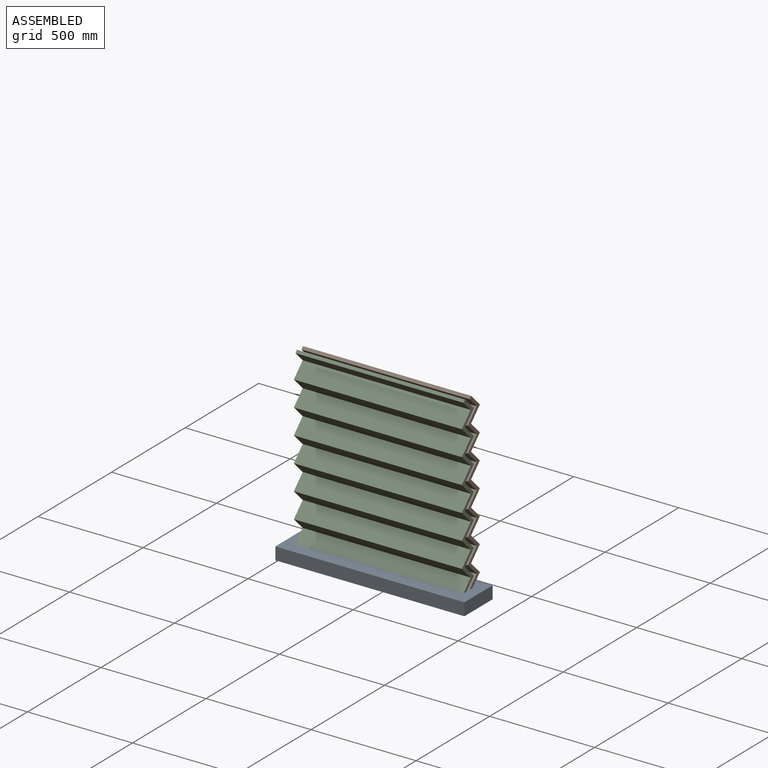
[diagram: assembled view]
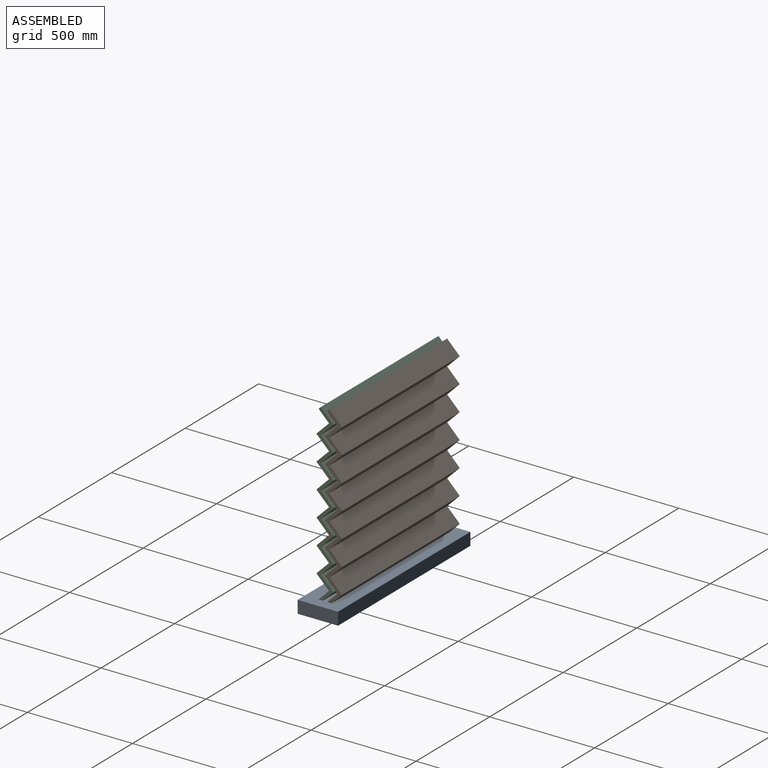
[diagram: assembled view, second angle]
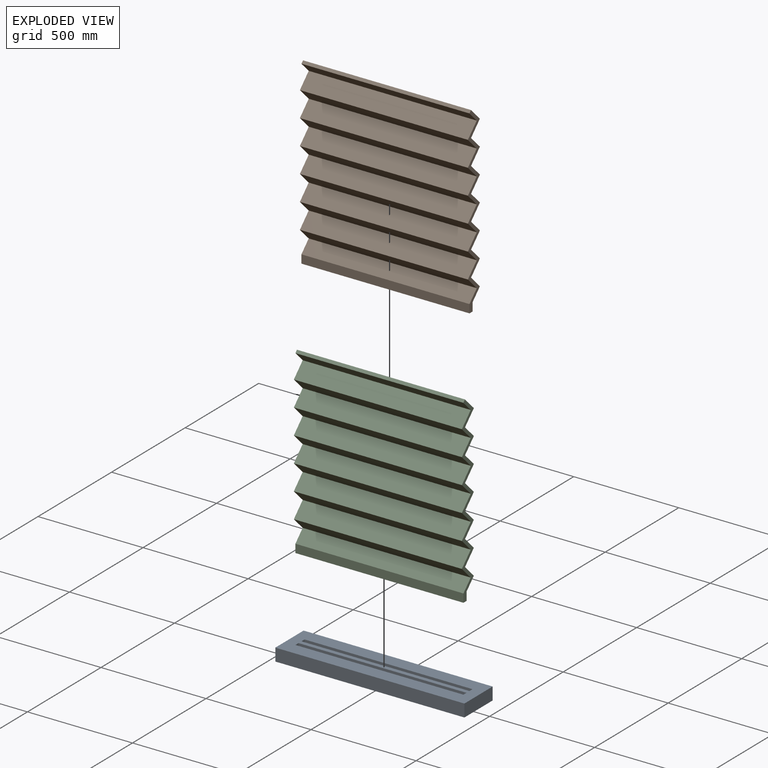
[diagram: exploded view]
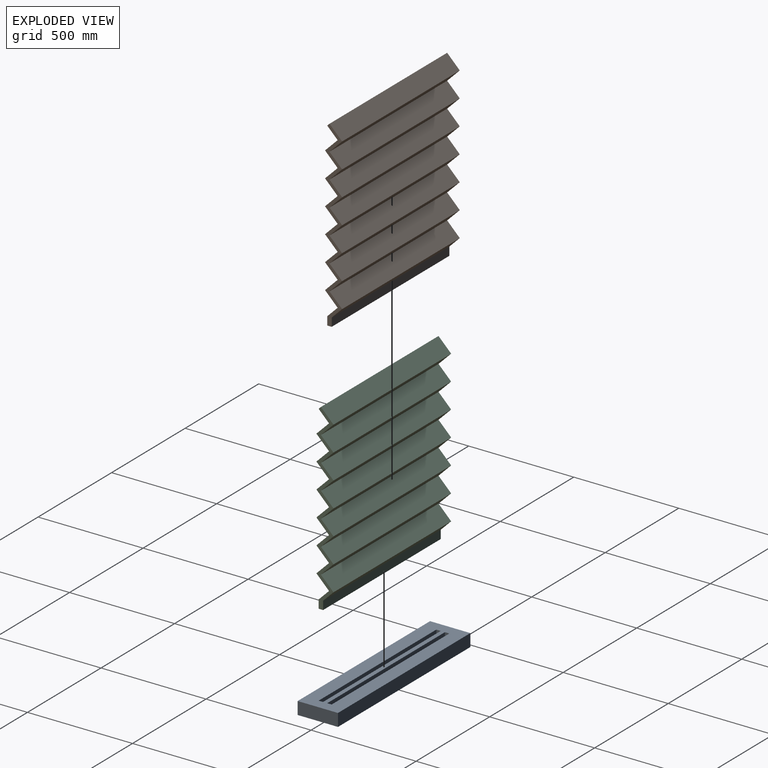
[diagram: exploded view, second angle]
ASSEMBLY  parts=3 mates=2
PART A: 16 faces, bbox 900x192x60 mm
  f0: plane 900x192mm, normal (0,0,1), area 139200mm2, adj f1,f2,f3,f4,f6,f7,f8,f9
  f1: plane 192x60mm, normal (1,0,0), area 11520mm2, adj f0,f2,f4,f5
  f2: plane 900x60mm, normal (0,1,0), area 54000mm2, adj f0,f1,f3,f5
  f3: plane 192x60mm, normal (-1,0,0), area 11520mm2, adj f0,f2,f4,f5
  f4: plane 900x60mm, normal (0,-1,0), area 54000mm2, adj f0,f1,f3,f5
  f5: plane 900x192mm, normal (0,0,-1), area 172800mm2, adj f1,f2,f3,f4
  f6: plane 800x40mm, normal (0,1,0), area 32000mm2, adj f0,f7,f9,f10
  f7: plane 40x21mm, normal (-1,0,0), area 840mm2, adj f0,f6,f8,f10
  f8: plane 800x40mm, normal (0,-1,0), area 32000mm2, adj f0,f7,f9,f10
  f9: plane 40x21mm, normal (1,0,0), area 840mm2, adj f0,f6,f8,f10
  f10: plane 800x21mm, normal (0,0,1), area 16800mm2, adj f6,f7,f8,f9
  f11: plane 40x21mm, normal (-1,0,0), area 840mm2, adj f0,f12,f14,f15
  f12: plane 800x40mm, normal (0,-1,0), area 32000mm2, adj f0,f11,f13,f15
  f13: plane 40x21mm, normal (1,0,0), area 840mm2, adj f0,f12,f14,f15
  f14: plane 800x40mm, normal (0,1,0), area 32000mm2, adj f0,f11,f13,f15
  f15: plane 800x21mm, normal (0,0,1), area 16800mm2, adj f11,f12,f13,f14
PART B: 34 faces, bbox 800x623.3x623.3 mm
  f0: plane 800x85mm, normal (0,0,-1), area 68000mm2, adj f1,f31,f32,f33
  f1: plane 800x70mm, normal (0,-1,0), area 56000mm2, adj f0,f2,f32,f33
  f2: plane 800x28.28mm, normal (0,-0.71,-0.71), area 32000mm2, adj f1,f3,f32,f33
  f3: plane 800x15mm, normal (0,0.71,-0.71), area 16970.6mm2, adj f2,f4,f32,f33
  f4: plane 800x28.28mm, normal (0,0.71,0.71), area 32000mm2, adj f3,f5,f32,f33
  f5: plane 800x70mm, normal (0,1,0), area 56000mm2, adj f4,f6,f32,f33
  f6: plane 800x85mm, normal (0,0,1), area 68000mm2, adj f5,f7,f32,f33
  f7: plane 800x85mm, normal (0,1,0), area 68000mm2, adj f6,f8,f32,f33
  f8: plane 800x85mm, normal (0,0,1), area 68000mm2, adj f7,f9,f32,f33
  f9: plane 800x85mm, normal (0,1,0), area 68000mm2, adj f8,f10,f32,f33
  f10: plane 800x85mm, normal (0,0,1), area 68000mm2, adj f9,f11,f32,f33
  f11: plane 800x85mm, normal (0,1,0), area 68000mm2, adj f10,f12,f32,f33
  f12: plane 800x85mm, normal (0,0,1), area 68000mm2, adj f11,f13,f32,f33
  f13: plane 800x85mm, normal (0,1,0), area 68000mm2, adj f12,f14,f32,f33
  f14: plane 800x85mm, normal (0,0,1), area 68000mm2, adj f13,f15,f32,f33
  f15: plane 800x85mm, normal (0,1,0), area 68000mm2, adj f14,f16,f32,f33
  f16: plane 800x85mm, normal (0,0,1), area 68000mm2, adj f15,f17,f32,f33
  f17: plane 800x85mm, normal (0,1,0), area 68000mm2, adj f16,f18,f32,f33
  f18: plane 800x85mm, normal (0,0,1), area 68000mm2, adj f17,f19,f32,f33
  f19: plane 800x15mm, normal (0,-1,0), area 12000mm2, adj f18,f20,f32,f33
  f20: plane 800x70mm, normal (0,0,-1), area 56000mm2, adj f19,f21,f32,f33
  f21: plane 800x85mm, normal (0,-1,0), area 68000mm2, adj f20,f22,f32,f33
  f22: plane 800x85mm, normal (0,0,-1), area 68000mm2, adj f21,f23,f32,f33
  f23: plane 800x85mm, normal (0,-1,0), area 68000mm2, adj f22,f24,f32,f33
  f24: plane 800x85mm, normal (0,0,-1), area 68000mm2, adj f23,f25,f32,f33
  f25: plane 800x85mm, normal (0,-1,0), area 68000mm2, adj f24,f26,f32,f33
  f26: plane 800x85mm, normal (0,0,-1), area 68000mm2, adj f25,f27,f32,f33
  f27: plane 800x85mm, normal (0,-1,0), area 68000mm2, adj f26,f28,f32,f33
  f28: plane 800x85mm, normal (0,0,-1), area 68000mm2, adj f27,f29,f32,f33
  f29: plane 800x85mm, normal (0,-1,0), area 68000mm2, adj f28,f30,f32,f33
  f30: plane 800x85mm, normal (0,0,-1), area 68000mm2, adj f29,f31,f32,f33
  f31: plane 800x85mm, normal (0,-1,0), area 68000mm2, adj f0,f30,f32,f33
  f32: plane 623.28x623.28mm, normal (1,0,0), area 18361mm2, adj f0,f1,f2,f3,f4,f5,f6,f7
  f33: plane 623.28x623.28mm, normal (-1,0,0), area 18361mm2, adj f0,f1,f2,f3,f4,f5,f6,f7
PART C: same geometry as B
PLACE A t=(-0.49,-3.07,-34.18)mm
PLACE B rot(axis=(-1,0,0),45deg) t=(-0.49,17.43,856.67)mm
PLACE C rot(axis=(-1,0,0),45deg) t=(-0.49,-23.57,856.67)mm
MATE fastened B.f3 <-> A.f15  axis (0,0,-1) through (-0.49,17.43,-14.18)mm
MATE fastened C.f3 <-> A.f10  axis (0,0,-1) through (-0.49,-23.57,-14.18)mm
